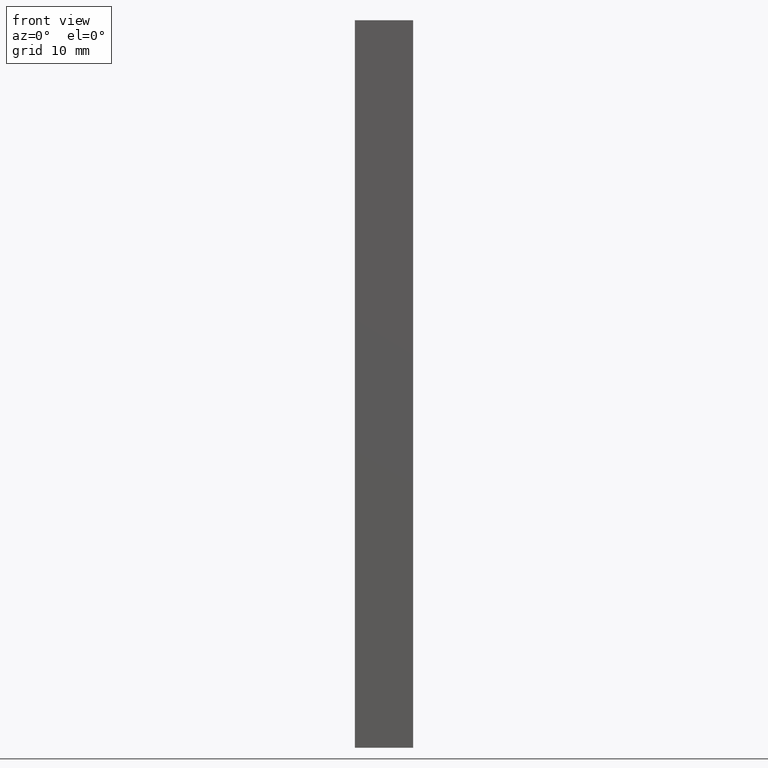
[diagram: clean part render]
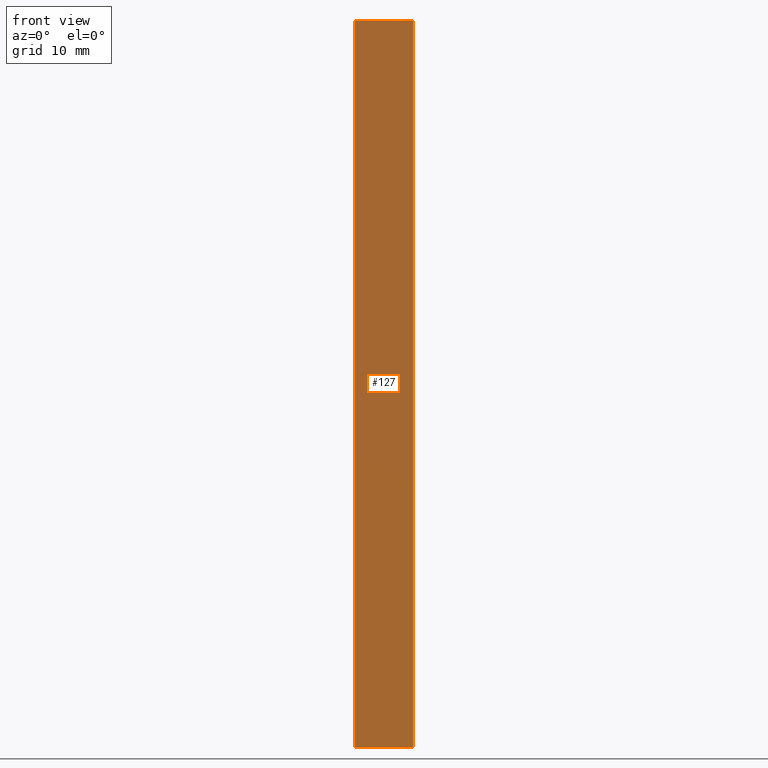
[diagram: same view with one face highlighted and labeled with its STEP entity id]
A machine part, front view. The second image highlights one B-rep face of the part: STEP entity #127.
In plain terms, the highlighted planar face has unit normal (0, -1, 0).
Its self-contained STEP definition (entity closure, byte-faithful):
#21=FACE_OUTER_BOUND('',#28,.T.);
#28=EDGE_LOOP('',(#106,#107,#108,#109));
#31=LINE('',#196,#46);
#37=LINE('',#207,#52);
#43=LINE('',#219,#58);
#44=LINE('',#221,#59);
#46=VECTOR('',#164,10.);
#52=VECTOR('',#172,10.);
#58=VECTOR('',#184,10.);
#59=VECTOR('',#187,10.);
#60=VERTEX_POINT('',#192);
#62=VERTEX_POINT('',#195);
#65=VERTEX_POINT('',#203);
#69=VERTEX_POINT('',#217);
#71=EDGE_CURVE('',#62,#60,#31,.T.);
#77=EDGE_CURVE('',#65,#62,#37,.T.);
#83=EDGE_CURVE('',#60,#69,#43,.T.);
#84=EDGE_CURVE('',#69,#65,#44,.T.);
#106=ORIENTED_EDGE('',*,*,#84,.T.);
#107=ORIENTED_EDGE('',*,*,#77,.T.);
#108=ORIENTED_EDGE('',*,*,#71,.T.);
#109=ORIENTED_EDGE('',*,*,#83,.T.);
#120=PLANE('',#157);
#127=ADVANCED_FACE('',(#21),#120,.T.);
#157=AXIS2_PLACEMENT_3D('',#220,#185,#186);
#164=DIRECTION('',(1.,1.38777878078145E-16,0.));
#172=DIRECTION('',(0.,0.,-1.));
#184=DIRECTION('',(0.,0.,1.));
#185=DIRECTION('center_axis',(1.38777878078145E-16,-1.,0.));
#186=DIRECTION('ref_axis',(0.,0.,-1.));
#187=DIRECTION('',(-1.,-1.38777878078145E-16,0.));
#192=CARTESIAN_POINT('',(4.44089209850063E-15,2.22044604925031E-15,-50.));
#195=CARTESIAN_POINT('',(-8.,1.11022302462516E-15,-50.));
#196=CARTESIAN_POINT('',(4.44089209850063E-15,2.22044604925031E-15,-50.));
#203=CARTESIAN_POINT('',(-8.,1.11022302462516E-15,50.));
#207=CARTESIAN_POINT('',(-8.,1.11022302462516E-15,0.));
#217=CARTESIAN_POINT('',(4.44089209850063E-15,2.22044604925031E-15,50.));
#219=CARTESIAN_POINT('',(4.44089209850063E-15,2.22044604925031E-15,0.));
#220=CARTESIAN_POINT('Origin',(4.44089209850063E-15,2.22044604925031E-15,
0.));
#221=CARTESIAN_POINT('',(4.44089209850063E-15,2.22044604925031E-15,50.));